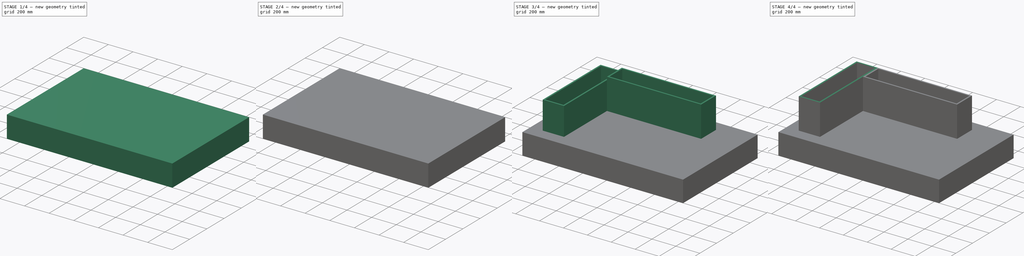
[diagram: build sequence overview — one tinted view per stage of 4, left to right]
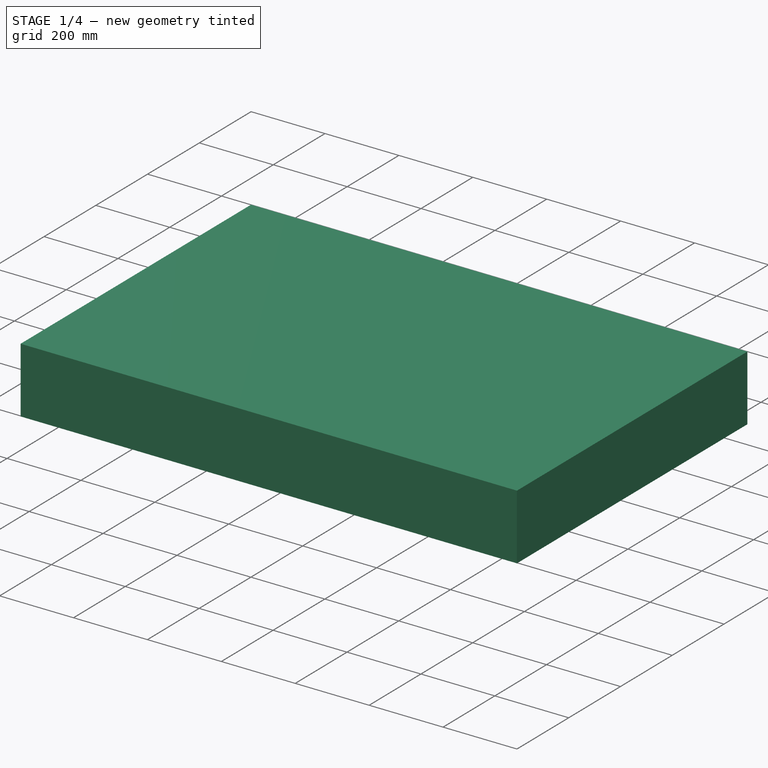
[diagram: stage 1 of 4 — iso view after this stage's code; geometry added in this stage tinted green]
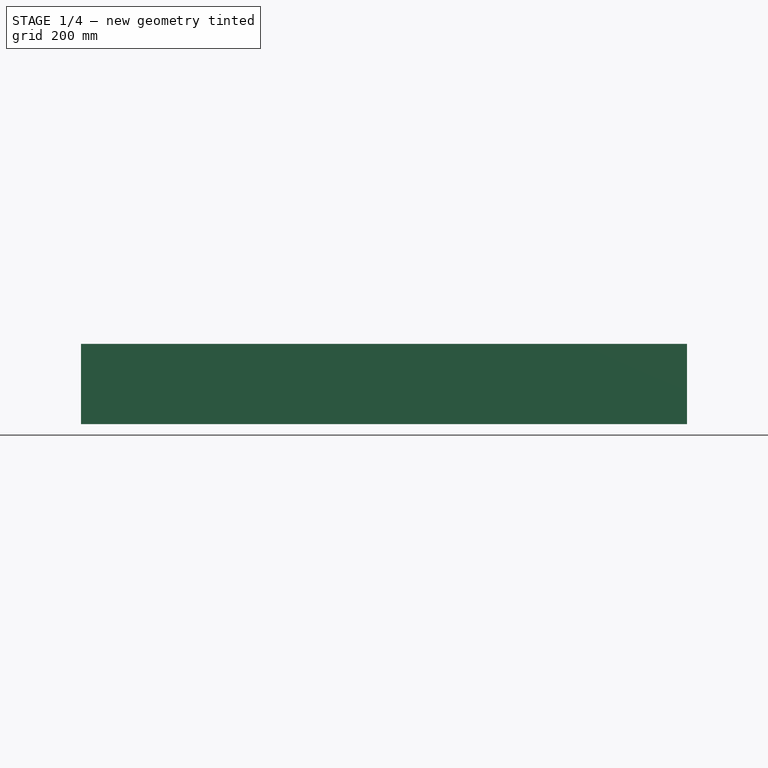
[diagram: stage 1 of 4 — front view after this stage's code; geometry added in this stage tinted green]
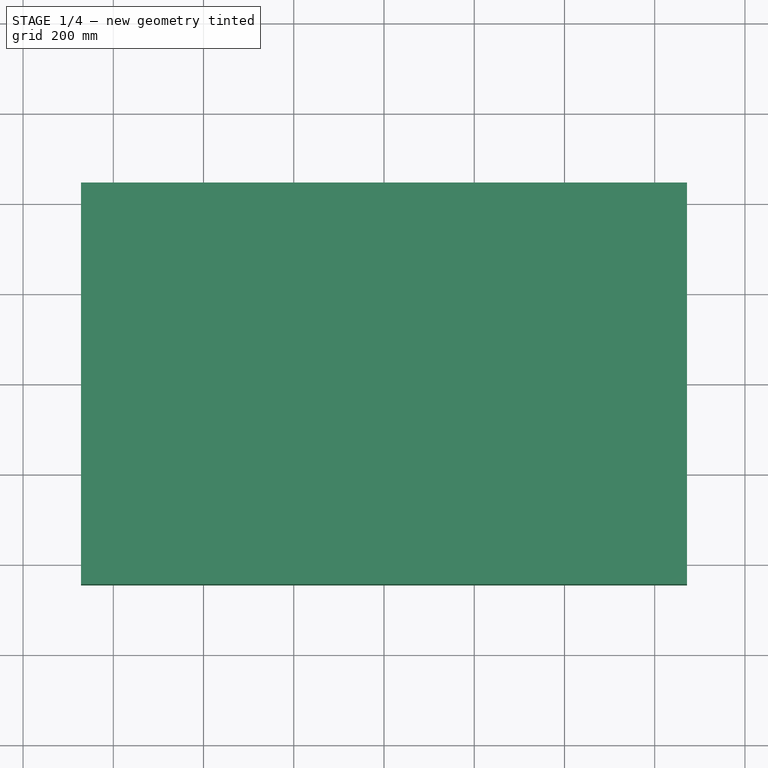
[diagram: stage 1 of 4 — top view after this stage's code; geometry added in this stage tinted green]
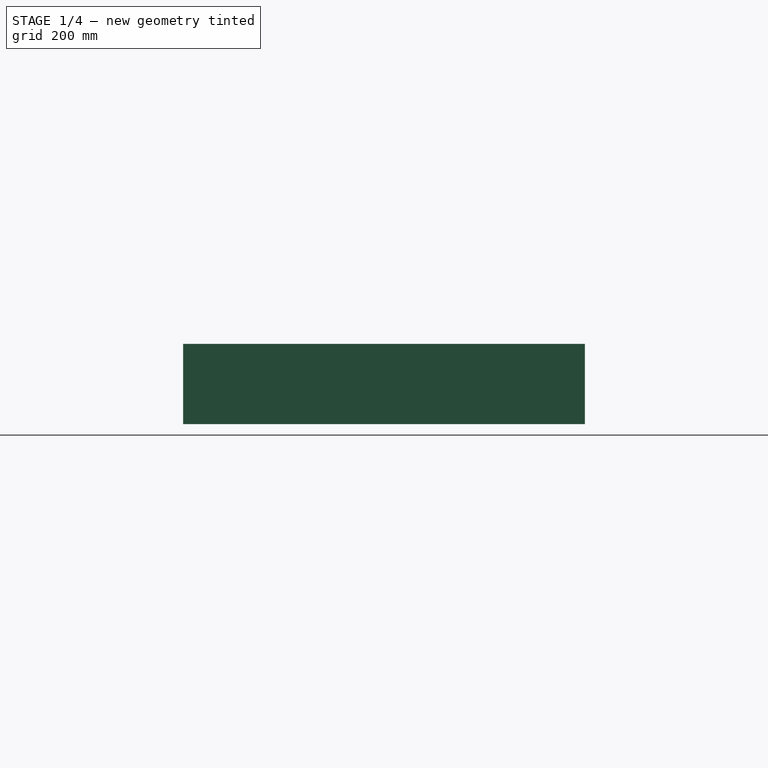
[diagram: stage 1 of 4 — right view after this stage's code; geometry added in this stage tinted green]
FCSTD DOCUMENT  (FreeCAD 0.19R24366 (Git))
Label: insulated-hive
License: Creative Commons Attribution-NonCommercial-ShareAlike
LicenseURL: http://creativecommons.org/licenses/by-nc-sa/4.0/
objects: Sketcher::SketchObject×8, PartDesign::Body×8, Part::Part2DObjectPython×6, PartDesign::Pad×6, App::DocumentObjectGroup×2, PartDesign::FeatureBase×2, PartDesign::Pocket×1
note: 38 computed .brp shape members not serialized (recipe doc carries the construction recipe); baked Part::Feature solids carry a one-line shape summary decoded from their .brp
EXTERNAL_REF file=../frame/layens-data.FCStd obj=Spreadsheet

FEATURE [PartDesign::Body] Body005  label="hive-top"
  Group = -> [Clone2D003,Sketch004,Pad003,Sketch005,Pocket]
  Origin = -> Origin005
  Placement = pos=(0,0,436.56) rot=(0,0,1;0rad)
  Tip = -> Pocket
  expr: .Placement.Base.z = layens_data#Spreadsheet.hive_plywood_thickness * 2 + layens_data#Spreadsheet.hive_inside_z
FEATURE [Part::Part2DObjectPython] Clone2D004  label="floor-sketch (2D)004"  # Draft 2D object (typed FeaturePython)
  Fuse = false
  Objects = -> [Sketch]
  Scale = (1,1,1)
FEATURE [Sketcher::SketchObject] Sketch006
  ExternalGeometry = -> [Clone2D004]
  FullyConstrained = true
  MapMode = 5
  Support = -> [XY_Plane006]
  expr: Constraints[10] = layens_data#Spreadsheet.hive_outside_y
  expr: Constraints[9] = layens_data#Spreadsheet.hive_outside_x
  sketch-geometry (8):
    g0: LineSegment StartX=-571.5 StartY=345.28 StartZ=0 EndX=571.5 EndY=345.28 EndZ=0
    g1: LineSegment StartX=571.5 StartY=345.28 StartZ=0 EndX=571.5 EndY=-345.28 EndZ=0
    g2: LineSegment StartX=571.5 StartY=-345.28 StartZ=0 EndX=-571.5 EndY=-345.28 EndZ=0
    g3: LineSegment StartX=-571.5 StartY=-345.28 StartZ=0 EndX=-571.5 EndY=345.28 EndZ=0
    g4: LineSegment StartX=-471.5 StartY=245.28 StartZ=0 EndX=471.5 EndY=245.28 EndZ=0
    g5: LineSegment StartX=471.5 StartY=245.28 StartZ=0 EndX=471.5 EndY=-245.28 EndZ=0
    g6: LineSegment StartX=471.5 StartY=-245.28 StartZ=0 EndX=-471.5 EndY=-245.28 EndZ=0
    g7: LineSegment StartX=-471.5 StartY=-245.28 StartZ=0 EndX=-471.5 EndY=245.28 EndZ=0
  constraints (22):
    c: Coincident(g0,g1)
    c: Coincident(g1,g2)
    c: Coincident(g2,g3)
    c: Coincident(g3,g0)
    c: Horizontal(g0)
    c: Horizontal(g2)
    c: Vertical(g1)
    c: Vertical(g3)
    c: Symmetric(g2,g0,g-1)
    c: DistanceX(g2,g2) = 1143
    c: DistanceY(g3,g3) = 690.56
    c: Coincident(g4,g5)
    c: Coincident(g5,g6)
    c: Coincident(g6,g7)
    c: Coincident(g7,g4)
    c: Horizontal(g4)
    c: Horizontal(g6)
    c: Vertical(g5)
    c: Vertical(g7)
    c: Symmetric(g6,g4,g-1)
    c: DistanceY(g2,g6) = 100
    c: DistanceX(g2,g6) = 100
FEATURE [PartDesign::Pad] Pad004  label="gasket-pad"
  Direction = (1,1,1)
  Length = 10
  Length2 = 100
  Profile = -> Sketch006
  Refine = true
  Type = 0
  expr: Length = layens_data#Spreadsheet.neoprene_gasket_thickness
FEATURE [PartDesign::Body] Body006  label="neoprene-gasket"
  Group = -> [Clone2D004,Sketch006,Pad004]
  Origin = -> Origin006
  Placement = pos=(0,0,461.96) rot=(0,0,1;0rad)
  Tip = -> Pad004
  expr: .Placement.Base.z = layens_data#Spreadsheet.hive_plywood_thickness * 4 + layens_data#Spreadsheet.hive_inside_z
FEATURE [Part::Part2DObjectPython] Clone2D005  label="floor-sketch (2D)005"  # Draft 2D object (typed FeaturePython)
  Fuse = false
  Objects = -> [Sketch]
  Scale = (1,1,1)
FEATURE [Sketcher::SketchObject] Sketch007
  ExternalGeometry = -> [Clone2D005]
  FullyConstrained = true
  MapMode = 5
  Support = -> [XY_Plane007]
  expr: Constraints[10] = layens_data#Spreadsheet.hive_outside_y + layens_data#Spreadsheet.lid_overhang
  expr: Constraints[9] = layens_data#Spreadsheet.hive_outside_x + layens_data#Spreadsheet.lid_overhang
  sketch-geometry (4):
    g0: LineSegment StartX=-671.5 StartY=445.28 StartZ=0 EndX=671.5 EndY=445.28 EndZ=0
    g1: LineSegment StartX=671.5 StartY=445.28 StartZ=0 EndX=671.5 EndY=-445.28 EndZ=0
    g2: LineSegment StartX=671.5 StartY=-445.28 StartZ=0 EndX=-671.5 EndY=-445.28 EndZ=0
    g3: LineSegment StartX=-671.5 StartY=-445.28 StartZ=0 EndX=-671.5 EndY=445.28 EndZ=0
  constraints (11):
    c: Coincident(g0,g1)
    c: Coincident(g1,g2)
    c: Coincident(g2,g3)
    c: Coincident(g3,g0)
    c: Horizontal(g0)
    c: Horizontal(g2)
    c: Vertical(g1)
    c: Vertical(g3)
    c: Symmetric(g2,g0,g-1)
    c: DistanceX(g2,g2) = 1343
    c: DistanceY(g3,g3) = 890.56
FEATURE [PartDesign::Pad] Pad005  label="lid-pad"
  Direction = (1,1,1)
  Length = 177.8
  Length2 = 100
  Profile = -> Sketch007
  Refine = true
  Type = 0
  expr: Length = layens_data#Spreadsheet.hive_plywood_thickness * 2 + layens_data#Spreadsheet.hive_insulation_thickness
FEATURE [PartDesign::Body] Body007  label="lid"
  Group = -> [Clone2D005,Sketch007,Pad005]
  Origin = -> Origin007
  Placement = pos=(0,0,471.96) rot=(0,0,1;0rad)
  Tip = -> Pad005
  expr: .Placement.Base.z = layens_data#Spreadsheet.hive_plywood_thickness * 4 + layens_data#Spreadsheet.neoprene_gasket_thickness + layens_data#Spreadsheet.hive_inside_z
FEATURE [App::DocumentObjectGroup] Group  label="bodies"
  Group = -> [Body002,Body001,Body,Body003,Body004,Body005,Body006,Body007]
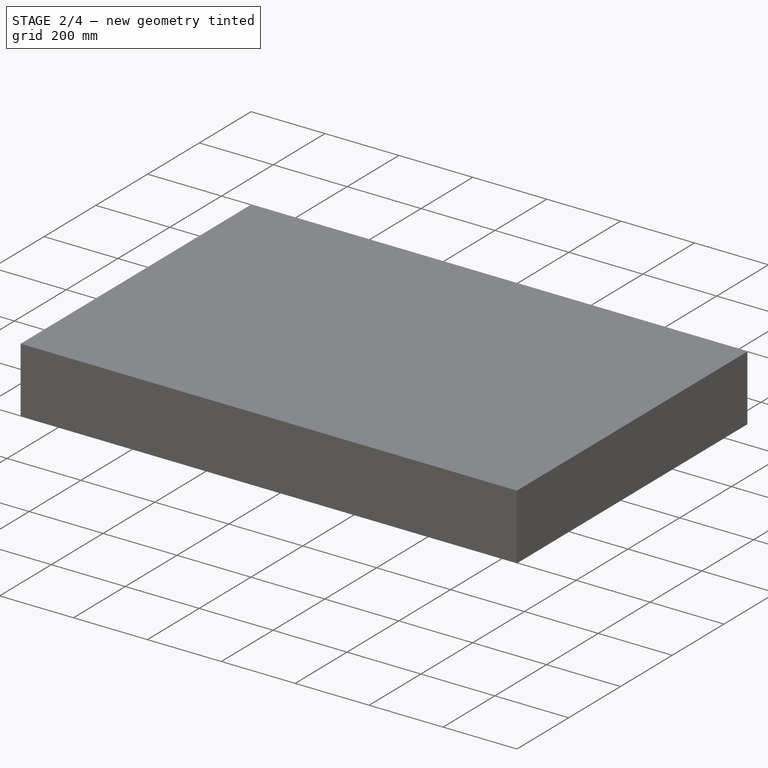
[diagram: stage 2 of 4 — iso view after this stage's code; geometry added in this stage tinted green]
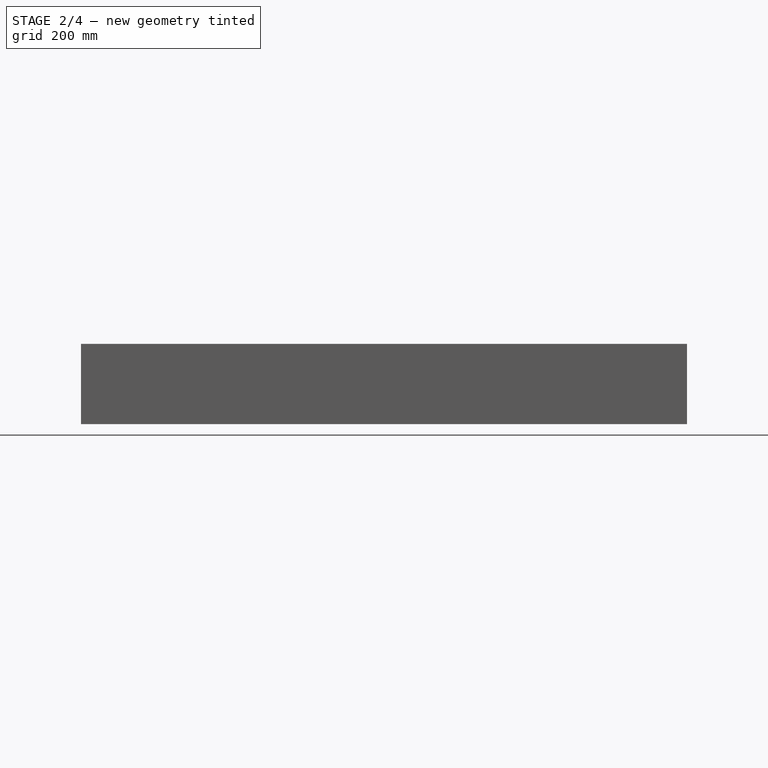
[diagram: stage 2 of 4 — front view after this stage's code; geometry added in this stage tinted green]
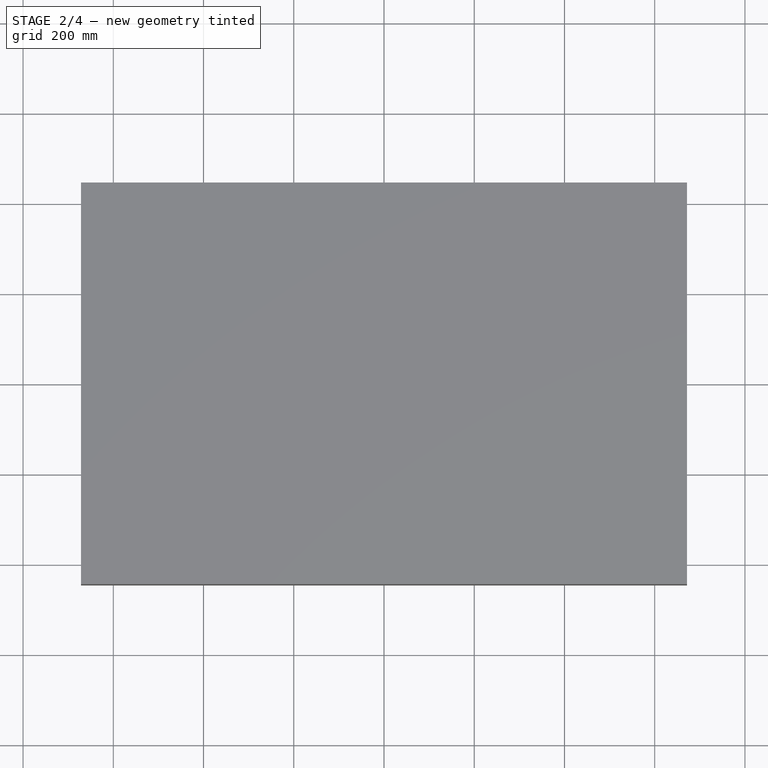
[diagram: stage 2 of 4 — top view after this stage's code; geometry added in this stage tinted green]
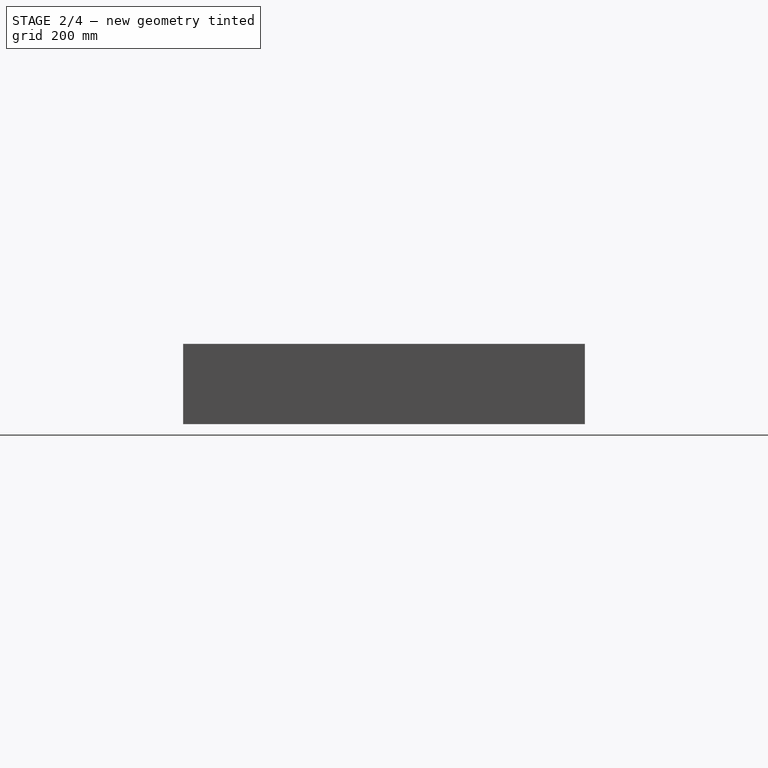
[diagram: stage 2 of 4 — right view after this stage's code; geometry added in this stage tinted green]
FEATURE [PartDesign::Body] Body004  label="back-wall"
  Group = -> [Clone001]
  Origin = -> Origin004
  Placement = pos=(0,-512.76,0) rot=(0,0,1;0rad)
  Tip = -> Clone001
  expr: .Placement.Base.y = -(layens_data#Spreadsheet.hive_inside_y + layens_data#Spreadsheet.hive_insulation_thickness + 2 * layens_data#Spreadsheet.hive_plywood_thickness)
FEATURE [Part::Part2DObjectPython] Clone2D003  label="floor-sketch (2D)003"  # Draft 2D object (typed FeaturePython)
  Fuse = false
  Objects = -> [Sketch]
  Scale = (1,1,1)
FEATURE [Sketcher::SketchObject] Sketch004  label="hive-top-sketch"
  ExternalGeometry = -> [Clone2D003]
  FullyConstrained = true
  MapMode = 5
  Support = -> [XY_Plane005]
  expr: Constraints[20] = layens_data#Spreadsheet.hive_outside_y
  expr: Constraints[19] = layens_data#Spreadsheet.hive_outside_x
  sketch-geometry (8):
    g0: LineSegment StartX=-393.7 StartY=167.48 StartZ=0 EndX=393.7 EndY=167.48 EndZ=0
    g1: LineSegment StartX=393.7 StartY=167.48 StartZ=0 EndX=393.7 EndY=-167.48 EndZ=0
    g2: LineSegment StartX=393.7 StartY=-167.48 StartZ=0 EndX=-393.7 EndY=-167.48 EndZ=0
    g3: LineSegment StartX=-393.7 StartY=-167.48 StartZ=0 EndX=-393.7 EndY=167.48 EndZ=0
    g4: LineSegment StartX=-571.5 StartY=345.28 StartZ=0 EndX=571.5 EndY=345.28 EndZ=0
    g5: LineSegment StartX=571.5 StartY=345.28 StartZ=0 EndX=571.5 EndY=-345.28 EndZ=0
    g6: LineSegment StartX=571.5 StartY=-345.28 StartZ=0 EndX=-571.5 EndY=-345.28 EndZ=0
    g7: LineSegment StartX=-571.5 StartY=-345.28 StartZ=0 EndX=-571.5 EndY=345.28 EndZ=0
  constraints (21):
    c: Coincident(g0,g1)
    c: Coincident(g1,g2)
    c: Coincident(g2,g3)
    c: Coincident(g3,g0)
    c: Horizontal(g0)
    c: Horizontal(g2)
    c: Vertical(g1)
    c: Vertical(g3)
    c: Coincident(g0,g-4)
    c: Coincident(g1,g-6)
    c: Coincident(g4,g5)
    c: Coincident(g5,g6)
    c: Coincident(g6,g7)
    c: Coincident(g7,g4)
    c: Horizontal(g4)
    c: Horizontal(g6)
    c: Vertical(g5)
    c: Vertical(g7)
    c: Symmetric(g6,g4,g-1)
    c: DistanceX(g6,g5) = 1143
    c: DistanceY(g6,g4) = 690.56
FEATURE [PartDesign::Pad] Pad003  label="hive-top-pad"
  Direction = (1,1,1)
  Length = 25.4
  Length2 = 100
  Profile = -> Sketch004
  Refine = true
  Type = 0
  expr: Length = layens_data#Spreadsheet.hive_plywood_thickness * 2
FEATURE [Sketcher::SketchObject] Sketch005
  ExternalGeometry = -> [Pad003]
  FullyConstrained = true
  MapMode = 5
  Placement = pos=(0,0,25.4) rot=(0,0,1;0rad)
  Support = -> [Pad003]
  expr: Constraints[10] = layens_data#Spreadsheet.frame_topbar_x + layens_data#Spreadsheet.hive_frame_clearance * 2
  sketch-geometry (4):
    g0: LineSegment StartX=-393.7 StartY=184.94 StartZ=0 EndX=393.7 EndY=184.94 EndZ=0
    g1: LineSegment StartX=393.7 StartY=184.94 StartZ=0 EndX=393.7 EndY=-184.94 EndZ=0
    g2: LineSegment StartX=393.7 StartY=-184.94 StartZ=0 EndX=-393.7 EndY=-184.94 EndZ=0
    g3: LineSegment StartX=-393.7 StartY=-184.94 StartZ=0 EndX=-393.7 EndY=184.94 EndZ=0
  constraints (11):
    c: Coincident(g0,g1)
    c: Coincident(g1,g2)
    c: Coincident(g2,g3)
    c: Coincident(g3,g0)
    c: Horizontal(g0)
    c: Horizontal(g2)
    c: Vertical(g1)
    c: Vertical(g3)
    c: Symmetric(g2,g0,g-1)
    c: PointOnObject(g-5,g3)
    c: DistanceY(g2,g0) = 369.88
FEATURE [PartDesign::Pocket] Pocket
  BaseFeature = -> Pad003
  Length = 12.7
  Length2 = 100
  Profile = -> Sketch005
  Refine = true
  Type = 0
  expr: Length = layens_data#Spreadsheet.hive_plywood_thickness
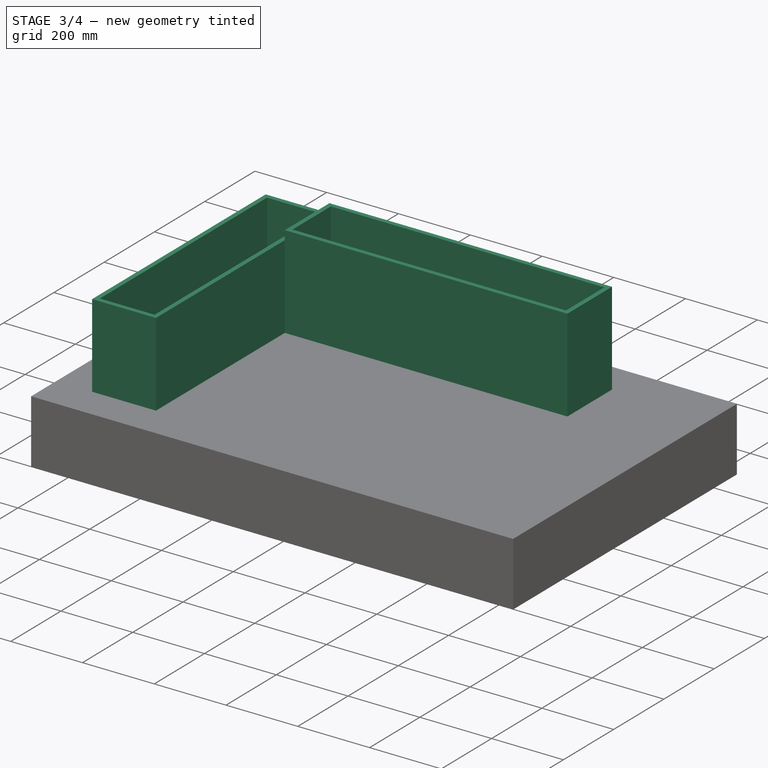
[diagram: stage 3 of 4 — iso view after this stage's code; geometry added in this stage tinted green]
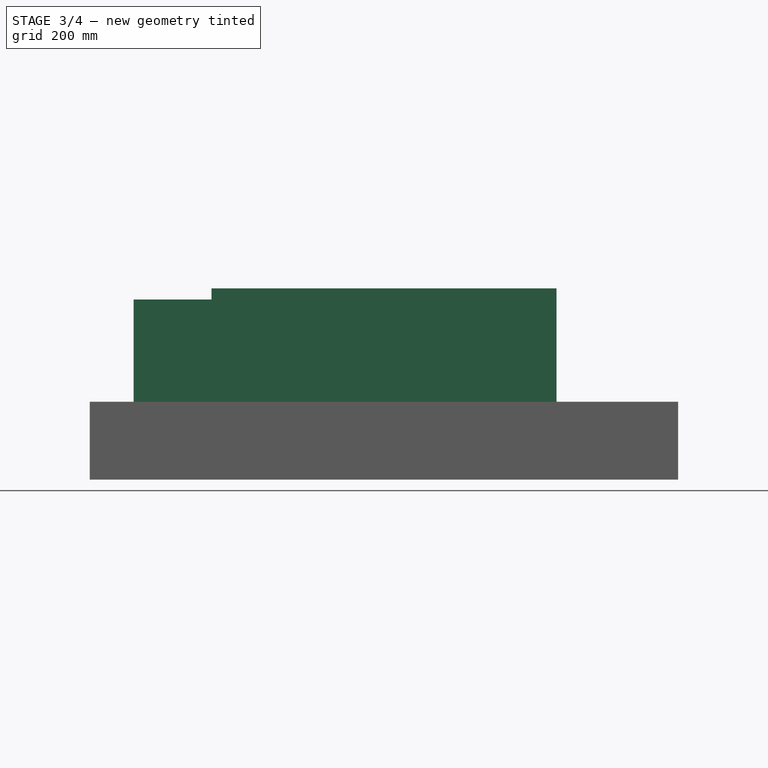
[diagram: stage 3 of 4 — front view after this stage's code; geometry added in this stage tinted green]
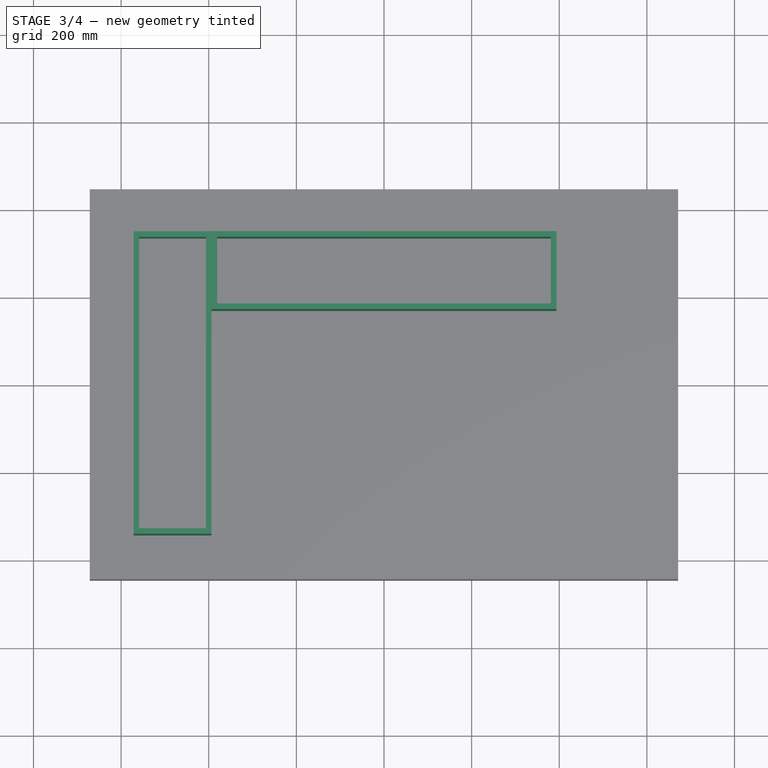
[diagram: stage 3 of 4 — top view after this stage's code; geometry added in this stage tinted green]
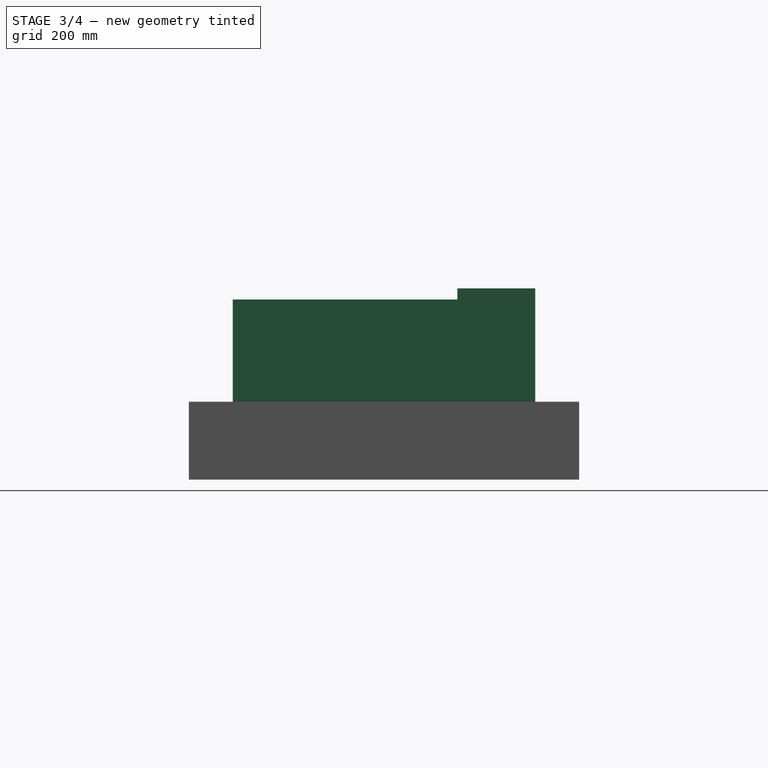
[diagram: stage 3 of 4 — right view after this stage's code; geometry added in this stage tinted green]
FEATURE [PartDesign::Body] Body  label="hive-base"
  Group = -> [Clone2D,Sketch001,Pad]
  Origin = -> Origin
  Tip = -> Pad
FEATURE [Part::Part2DObjectPython] Clone2D001  label="floor-sketch (2D)001"  # Draft 2D object (typed FeaturePython)
  Fuse = false
  Objects = -> [Sketch]
  Scale = (1,1,1)
FEATURE [Sketcher::SketchObject] Sketch002  label="side-wall-sketch"
  ExternalGeometry = -> [Clone2D001]
  FullyConstrained = true
  MapMode = 5
  Support = -> [XY_Plane001]
  expr: Constraints[26] = layens_data#Spreadsheet.hive_plywood_thickness
  expr: Constraints[25] = layens_data#Spreadsheet.hive_plywood_thickness
  expr: Constraints[24] = layens_data#Spreadsheet.hive_plywood_thickness
  expr: Constraints[15] = layens_data#Spreadsheet.hive_insulation_thickness + 2 * layens_data#Spreadsheet.hive_plywood_thickness
  expr: Constraints[27] = layens_data#Spreadsheet.hive_plywood_thickness
  expr: Constraints[14] = layens_data#Spreadsheet.hive_insulation_thickness + 2 * layens_data#Spreadsheet.hive_plywood_thickness
  sketch-geometry (10):
    g0: LineSegment StartX=-393.7 StartY=167.48 StartZ=0 EndX=-393.7 EndY=345.28 EndZ=0
    g1: LineSegment StartX=-393.7 StartY=345.28 StartZ=0 EndX=-571.5 EndY=345.28 EndZ=0
    g2: LineSegment StartX=-571.5 StartY=345.28 StartZ=0 EndX=-571.5 EndY=-345.28 EndZ=0
    g3: LineSegment StartX=-571.5 StartY=-345.28 StartZ=0 EndX=-393.7 EndY=-345.28 EndZ=0
    g4: LineSegment StartX=-393.7 StartY=-345.28 StartZ=0 EndX=-393.7 EndY=-167.48 EndZ=0
    g5: LineSegment StartX=-393.7 StartY=-167.48 StartZ=0 EndX=-393.7 EndY=167.48 EndZ=0
    g6: LineSegment StartX=-558.8 StartY=332.58 StartZ=0 EndX=-406.4 EndY=332.58 EndZ=0
    g7: LineSegment StartX=-406.4 StartY=332.58 StartZ=0 EndX=-406.4 EndY=-332.58 EndZ=0
    g8: LineSegment StartX=-406.4 StartY=-332.58 StartZ=0 EndX=-558.8 EndY=-332.58 EndZ=0
    g9: LineSegment StartX=-558.8 StartY=-332.58 StartZ=0 EndX=-558.8 EndY=332.58 EndZ=0
  constraints (28):
    c: Coincident(g-3,g0)
    c: Vertical(g0)
    c: Coincident(g0,g1)
    c: Horizontal(g1)
    c: Coincident(g1,g2)
    c: Vertical(g2)
    c: Coincident(g2,g3)
    c: Horizontal(g3)
    c: Coincident(g3,g4)
    c: Coincident(g4,g-3)
    c: Vertical(g4)
    c: Coincident(g4,g5)
    c: Coincident(g5,g0)
    c: Equal(g0,g4)
    c: DistanceY(g0,g0) = 177.8
    c: DistanceX(g1,g0) = 177.8
    c: Coincident(g6,g7)
    c: Coincident(g7,g8)
    c: Coincident(g8,g9)
    c: Coincident(g9,g6)
    c: Horizontal(g6)
    c: Horizontal(g8)
    c: Vertical(g7)
    c: Vertical(g9)
    c: DistanceX(g2,g8) = 12.7
    c: DistanceY(g2,g8) = 12.7
    c: DistanceX(g6,g0) = 12.7
    c: DistanceY(g6,g0) = 12.7
FEATURE [PartDesign::Pad] Pad001  label="side-wall-pad"
  Direction = (1,1,1)
  Length = 411.16
  Length2 = 100
  Profile = -> Sketch002
  Refine = true
  Type = 0
  expr: Length = layens_data#Spreadsheet.hive_inside_z
FEATURE [PartDesign::Body] Body002  label="side-wall-2"
  Group = -> [Clone]
  Origin = -> Origin002
  Placement = pos=(965.2,0,0) rot=(0,0,1;0rad)
  Tip = -> Clone
  expr: .Placement.Base.x = layens_data#Spreadsheet.hive_inside_x + layens_data#Spreadsheet.hive_insulation_thickness + 2 * layens_data#Spreadsheet.hive_plywood_thickness
FEATURE [Part::Part2DObjectPython] Clone2D002  label="floor-sketch (2D)002"  # Draft 2D object (typed FeaturePython)
  Fuse = false
  Objects = -> [Sketch]
  Scale = (1,1,1)
FEATURE [Sketcher::SketchObject] Sketch003  label="front-wall-sketch"
  ExternalGeometry = -> [Clone2D002]
  FullyConstrained = true
  MapMode = 5
  Support = -> [XY_Plane003]
  expr: Constraints[22] = layens_data#Spreadsheet.hive_plywood_thickness
  expr: Constraints[21] = layens_data#Spreadsheet.hive_plywood_thickness
  expr: Constraints[20] = layens_data#Spreadsheet.hive_plywood_thickness
  expr: Constraints[19] = layens_data#Spreadsheet.hive_plywood_thickness
  expr: Constraints[10] = layens_data#Spreadsheet.hive_insulation_thickness + 2 * layens_data#Spreadsheet.hive_plywood_thickness
  sketch-geometry (8):
    g0: LineSegment StartX=-393.7 StartY=345.28 StartZ=0 EndX=393.7 EndY=345.28 EndZ=0
    g1: LineSegment StartX=393.7 StartY=345.28 StartZ=0 EndX=393.7 EndY=167.48 EndZ=0
    g2: LineSegment StartX=393.7 StartY=167.48 StartZ=0 EndX=-393.7 EndY=167.48 EndZ=0
    g3: LineSegment StartX=-393.7 StartY=167.48 StartZ=0 EndX=-393.7 EndY=345.28 EndZ=0
    g4: LineSegment StartX=-381 StartY=332.58 StartZ=0 EndX=381 EndY=332.58 EndZ=0
    g5: LineSegment StartX=381 StartY=332.58 StartZ=0 EndX=381 EndY=180.18 EndZ=0
    g6: LineSegment StartX=381 StartY=180.18 StartZ=0 EndX=-381 EndY=180.18 EndZ=0
    g7: LineSegment StartX=-381 StartY=180.18 StartZ=0 EndX=-381 EndY=332.58 EndZ=0
  constraints (23):
    c: Coincident(g0,g1)
    c: Coincident(g1,g2)
    c: Coincident(g2,g3)
    c: Coincident(g3,g0)
    c: Horizontal(g0)
    c: Horizontal(g2)
    c: Vertical(g1)
    c: Vertical(g3)
    c: Coincident(g2,g-4)
    c: PointOnObject(g1,g-5)
    c: DistanceY(g2,g0) = 177.8
    c: Coincident(g4,g5)
    c: Coincident(g5,g6)
    c: Coincident(g6,g7)
    c: Coincident(g7,g4)
    c: Horizontal(g4)
    c: Horizontal(g6)
    c: Vertical(g5)
    c: Vertical(g7)
    c: DistanceX(g2,g6) = 12.7
    c: DistanceY(g2,g6) = 12.7
    c: DistanceX(g4,g0) = 12.7
    c: DistanceY(g4,g0) = 12.7
FEATURE [PartDesign::Pad] Pad002  label="front-wall-pad"
  Direction = (1,1,1)
  Length = 411.16
  Length2 = 100
  Profile = -> Sketch003
  Refine = true
  Type = 0
  expr: Length = layens_data#Spreadsheet.hive_inside_z
FEATURE [PartDesign::Body] Body003  label="front-wall"
  Group = -> [Clone2D002,Sketch003,Pad002]
  Origin = -> Origin003
  Placement = pos=(0,0,25.4) rot=(0,0,1;0rad)
  Tip = -> Pad002
  expr: .Placement.Base.z = layens_data#Spreadsheet.hive_plywood_thickness * 2
FEATURE [PartDesign::FeatureBase] Clone001
  BaseFeature = -> Body003
  Placement = pos=(0,0,25.4) rot=(0,0,1;0rad)
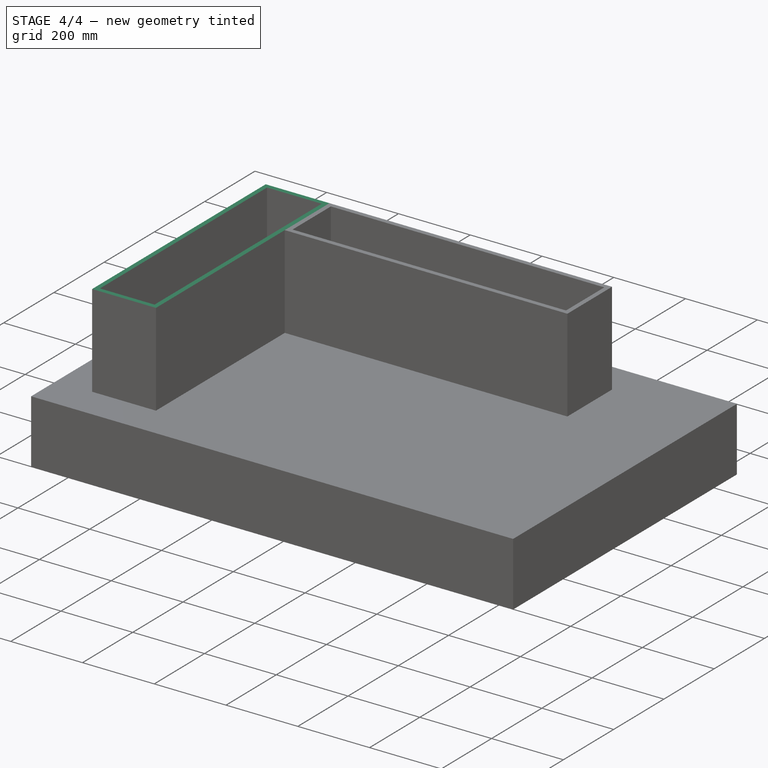
[diagram: stage 4 of 4 — iso view after this stage's code; geometry added in this stage tinted green]
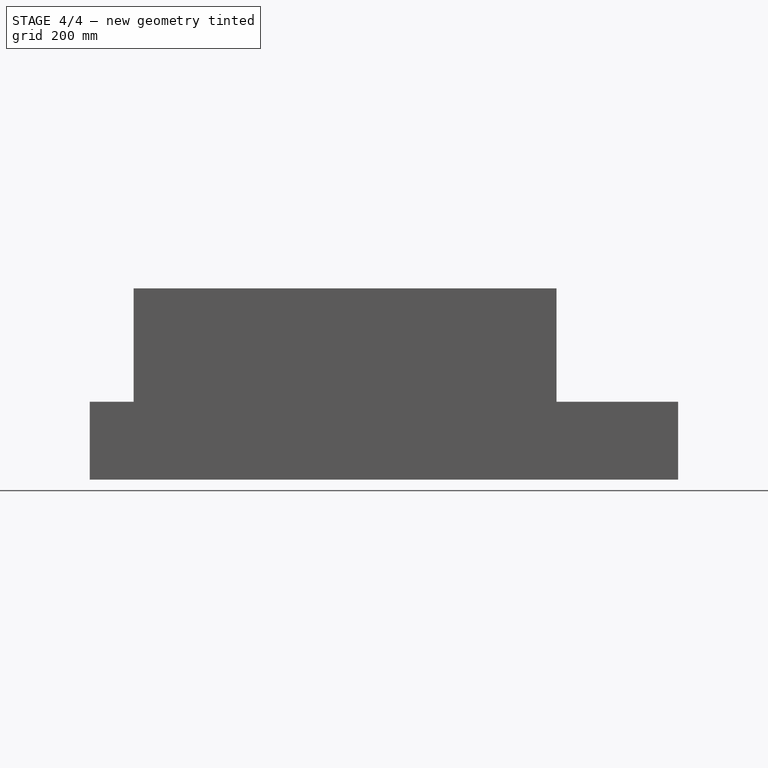
[diagram: stage 4 of 4 — front view after this stage's code; geometry added in this stage tinted green]
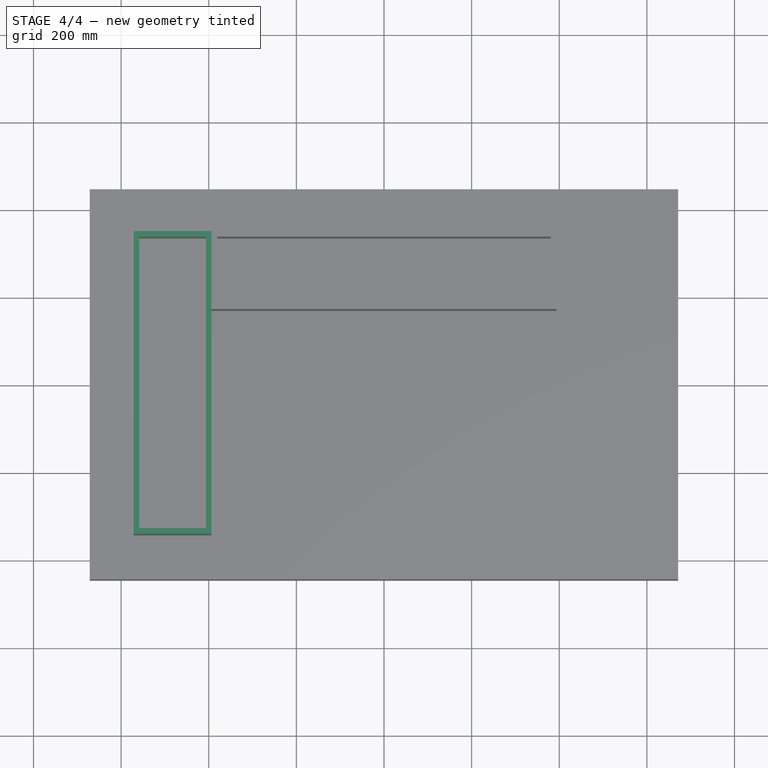
[diagram: stage 4 of 4 — top view after this stage's code; geometry added in this stage tinted green]
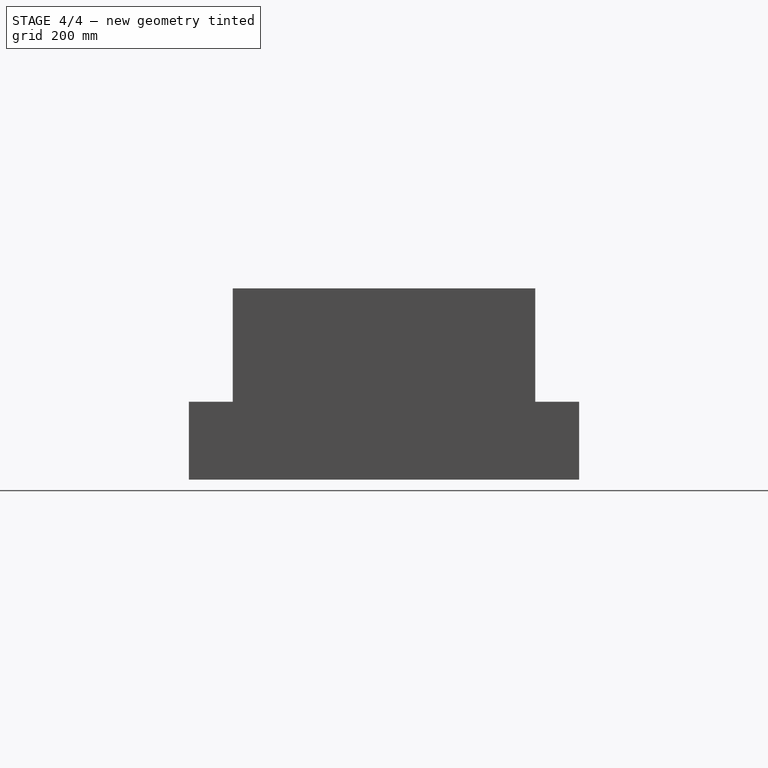
[diagram: stage 4 of 4 — right view after this stage's code; geometry added in this stage tinted green]
FEATURE [Sketcher::SketchObject] Sketch  label="floor-sketch"
  FullyConstrained = true
  expr: Constraints[9] = layens_data#Spreadsheet.hive_inside_y
  expr: Constraints[10] = layens_data#Spreadsheet.hive_inside_x
  sketch-geometry (4):
    g0: LineSegment StartX=-393.7 StartY=167.48 StartZ=0 EndX=393.7 EndY=167.48 EndZ=0
    g1: LineSegment StartX=393.7 StartY=167.48 StartZ=0 EndX=393.7 EndY=-167.48 EndZ=0
    g2: LineSegment StartX=393.7 StartY=-167.48 StartZ=0 EndX=-393.7 EndY=-167.48 EndZ=0
    g3: LineSegment StartX=-393.7 StartY=-167.48 StartZ=0 EndX=-393.7 EndY=167.48 EndZ=0
  constraints (11):
    c: Coincident(g0,g1)
    c: Coincident(g1,g2)
    c: Coincident(g2,g3)
    c: Coincident(g3,g0)
    c: Horizontal(g0)
    c: Horizontal(g2)
    c: Vertical(g1)
    c: Vertical(g3)
    c: Symmetric(g2,g0,g-1)
    c: DistanceY(g2,g0) = 334.96
    c: DistanceX(g0,g0) = 787.4
FEATURE [App::DocumentObjectGroup] Group001  label="reference"
  Group = -> [Sketch]
FEATURE [Part::Part2DObjectPython] Clone2D  label="floor-sketch (2D)"  # Draft 2D object (typed FeaturePython)
  Fuse = false
  Objects = -> [Sketch]
  Scale = (1,1,1)
FEATURE [Sketcher::SketchObject] Sketch001  label="hive-base-sketch"
  ExternalGeometry = -> [Clone2D]
  FullyConstrained = true
  MapMode = 5
  Support = -> [XY_Plane]
  expr: Constraints[24] = 24.5
  sketch-geometry (10):
    g0: LineSegment StartX=-571.5 StartY=345.28 StartZ=0 EndX=571.5 EndY=345.28 EndZ=0
    g1: LineSegment StartX=571.5 StartY=345.28 StartZ=0 EndX=571.5 EndY=-345.28 EndZ=0
    g2: LineSegment StartX=571.5 StartY=-345.28 StartZ=0 EndX=-571.5 EndY=-345.28 EndZ=0
    g3: LineSegment StartX=-571.5 StartY=-345.28 StartZ=0 EndX=-571.5 EndY=345.28 EndZ=0
    g4: LineSegment StartX=-393.7 StartY=0 StartZ=0 EndX=-196.85 EndY=0 EndZ=0
    g5: LineSegment StartX=-196.85 StartY=0 StartZ=0 EndX=0 EndY=0 EndZ=0
    g6: LineSegment StartX=0 StartY=0 StartZ=0 EndX=196.85 EndY=0 EndZ=0
    g7: LineSegment StartX=196.85 StartY=0 StartZ=0 EndX=393.7 EndY=0 EndZ=0
    g8: Circle CenterX=-196.85 CenterY=0 CenterZ=0 NormalX=0 NormalY=0 NormalZ=1 AngleXU=0 Radius=24.5
    g9: Circle CenterX=196.85 CenterY=0 CenterZ=0 NormalX=0 NormalY=0 NormalZ=1 AngleXU=0 Radius=24.5
  constraints (27):
    c: Coincident(g0,g1)
    c: Coincident(g1,g2)
    c: Coincident(g2,g3)
    c: Coincident(g3,g0)
    c: Horizontal(g0)
    c: Horizontal(g2)
    c: Vertical(g1)
    c: Vertical(g3)
    c: Symmetric(g2,g0,g-1)
    c: PointOnObject(g4,g-3)
    c: PointOnObject(g4,g-1)
    c: Coincident(g4,g5)
    c: Coincident(g5,g-1)
    c: Coincident(g5,g6)
    c: PointOnObject(g6,g-1)
    c: Coincident(g6,g7)
    c: PointOnObject(g7,g-4)
    c: Horizontal(g7,g4)
    c: Horizontal(g4,g4)
    c: Equal(g4,g5)
    c: Equal(g6,g7)
    c: Coincident(g8,g4)
    c: Coincident(g9,g6)
    c: Equal(g8,g9)
    c: Radius(g8) = 24.5
    c: DistanceX(g2,g1) = 1143
    c: DistanceY(g1,g0) = 690.56
FEATURE [PartDesign::Pad] Pad  label="hive-base-pad"
  Direction = (1,1,1)
  Length = 25.4
  Length2 = 100
  Profile = -> Sketch001
  Refine = true
  Type = 0
  expr: Length = layens_data#Spreadsheet.hive_plywood_thickness * 2
FEATURE [PartDesign::Body] Body001  label="side-wall"
  Group = -> [Clone2D001,Sketch002,Pad001]
  Origin = -> Origin001
  Placement = pos=(0,0,25.4) rot=(0,0,1;0rad)
  Tip = -> Pad001
  expr: .Placement.Base.z = layens_data#Spreadsheet.hive_plywood_thickness * 2
FEATURE [PartDesign::FeatureBase] Clone
  BaseFeature = -> Body001
  Placement = pos=(0,0,25.4) rot=(0,0,1;0rad)
  expr: .Placement.Base.z = layens_data#Spreadsheet.hive_plywood_thickness * 2
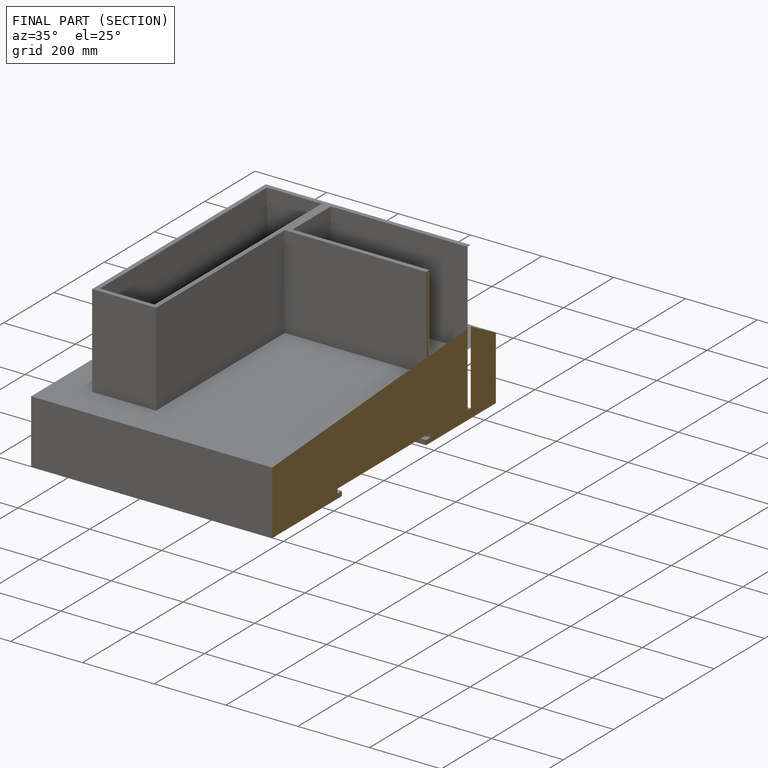
[diagram: finished part — half-section view (interior)]
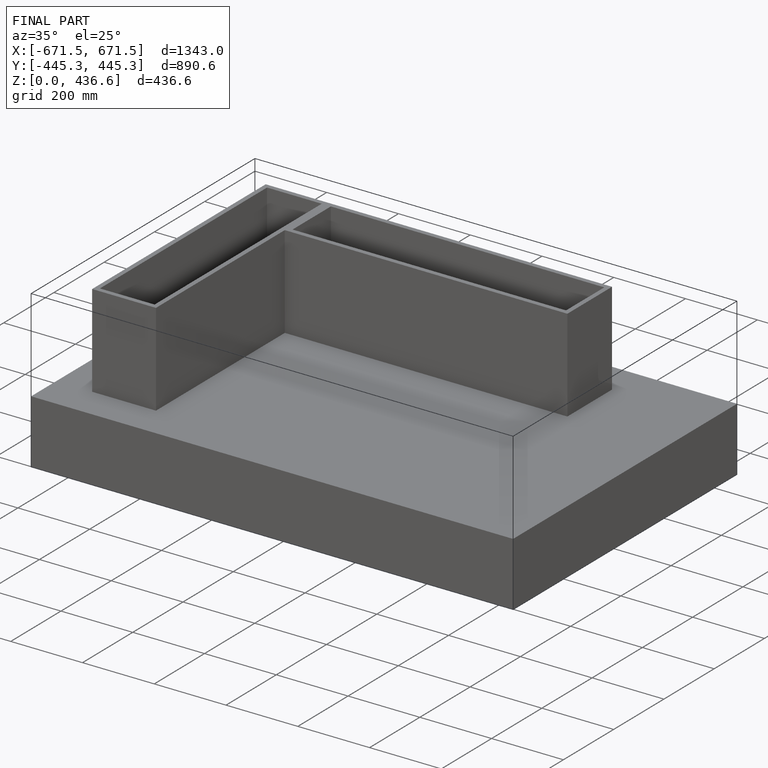
[diagram: finished part — iso view with bounding-box wireframe]
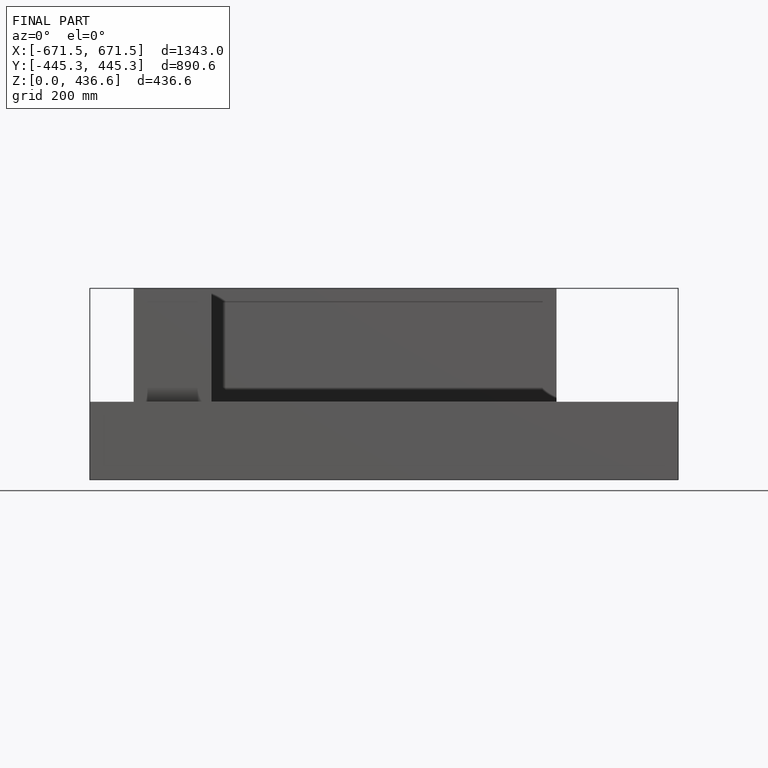
[diagram: finished part — front view with bounding-box wireframe]
